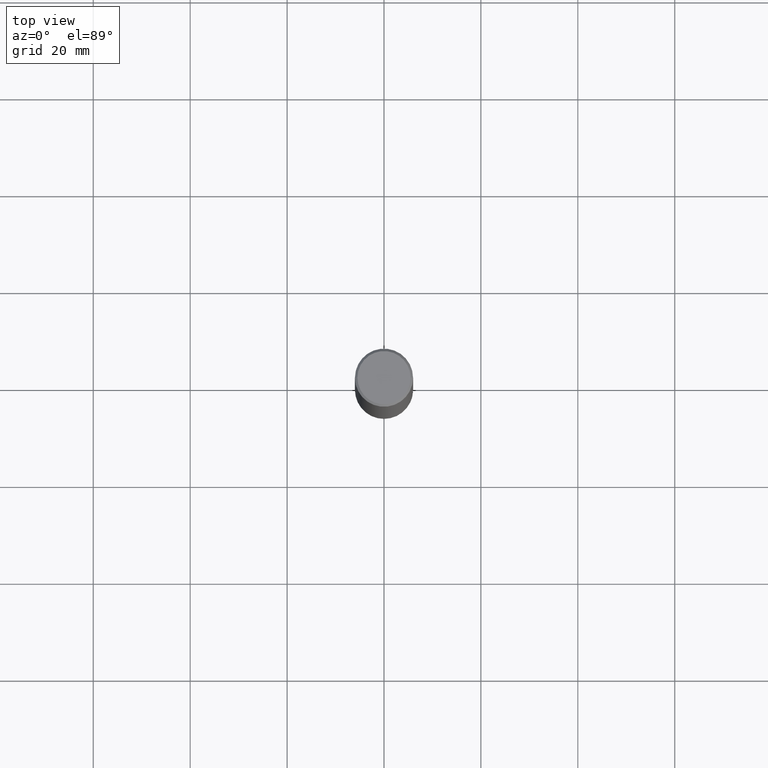
[diagram: clean part render]
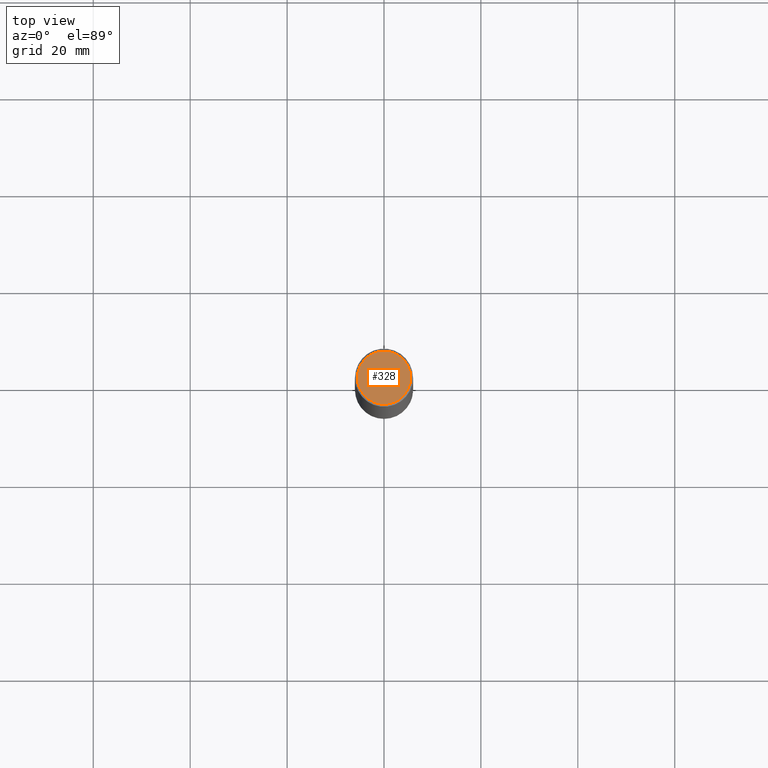
[diagram: same view with one face highlighted and labeled with its STEP entity id]
A machine part, top view. The second image highlights one B-rep face of the part: STEP entity #328.
In plain terms, the highlighted planar face has unit normal (0, -0, -1).
Its self-contained STEP definition (entity closure, byte-faithful):
#14 = CARTESIAN_POINT ( 'NONE',  ( 1.509716530915769534E-15, 0.2161999999999998368, -6.929648343514316371E-16 ) ) ;
#24 = ORIENTED_EDGE ( 'NONE', *, *, #305, .T. ) ;
#86 = VERTEX_POINT ( 'NONE', #355 ) ;
#99 = DIRECTION ( 'NONE',  ( -2.445468806185136597E-29, 3.491481338843145583E-15, 1.000000000000000000 ) ) ;
#114 = FACE_OUTER_BOUND ( 'NONE', #180, .T. ) ;
#126 = ORIENTED_EDGE ( 'NONE', *, *, #160, .T. ) ;
#139 = CARTESIAN_POINT ( 'NONE',  ( 0.2161999999999998368, -1.586759460484351002E-15, 1.237868622129227524E-16 ) ) ;
#160 = EDGE_CURVE ( 'NONE', #268, #86, #260, .T. ) ;
#180 = EDGE_LOOP ( 'NONE', ( #24, #126 ) ) ;
#185 = AXIS2_PLACEMENT_3D ( 'NONE', #333, #375, #404 ) ;
#203 = AXIS2_PLACEMENT_3D ( 'NONE', #14, #339, #378 ) ;
#232 = PLANE ( 'NONE',  #203 ) ;
#260 = CIRCLE ( 'NONE', #410, 0.2161999999999998368 ) ;
#268 = VERTEX_POINT ( 'NONE', #139 ) ;
#279 = CARTESIAN_POINT ( 'NONE',  ( -3.027169101572137302E-45, 4.321995194103296744E-31, 1.237868622129119302E-16 ) ) ;
#305 = EDGE_CURVE ( 'NONE', #86, #268, #371, .T. ) ;
#328 = ADVANCED_FACE ( 'NONE', ( #114 ), #232, .F. ) ;
#333 = CARTESIAN_POINT ( 'NONE',  ( -3.027169101572137302E-45, 4.321995194103296744E-31, 1.237868622129119302E-16 ) ) ;
#339 = DIRECTION ( 'NONE',  ( 2.438088387897960049E-29, -3.491481338843145188E-15, -1.000000000000000000 ) ) ;
#355 = CARTESIAN_POINT ( 'NONE',  ( -0.2161999999999998368, 1.544631344304201775E-15, 1.237868622129012559E-16 ) ) ;
#364 = DIRECTION ( 'NONE',  ( 1.000000000000000000, -6.982962677686266711E-15, 4.874901889287150056E-29 ) ) ;
#371 = CIRCLE ( 'NONE', #185, 0.2161999999999998368 ) ;
#375 = DIRECTION ( 'NONE',  ( -2.445468806185136597E-29, 3.491481338843145583E-15, 1.000000000000000000 ) ) ;
#378 = DIRECTION ( 'NONE',  ( -1.000000000000000000, 6.982962677686265922E-15, -4.876176775795935793E-29 ) ) ;
#404 = DIRECTION ( 'NONE',  ( 1.000000000000000000, -6.982962677686266711E-15, 4.874901889287150056E-29 ) ) ;
#410 = AXIS2_PLACEMENT_3D ( 'NONE', #279, #99, #364 ) ;